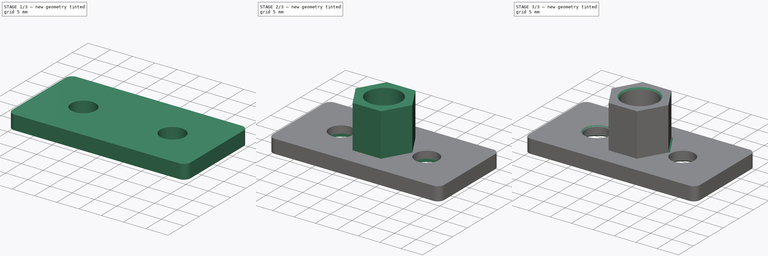
[diagram: build sequence overview — one tinted view per stage of 3, left to right]
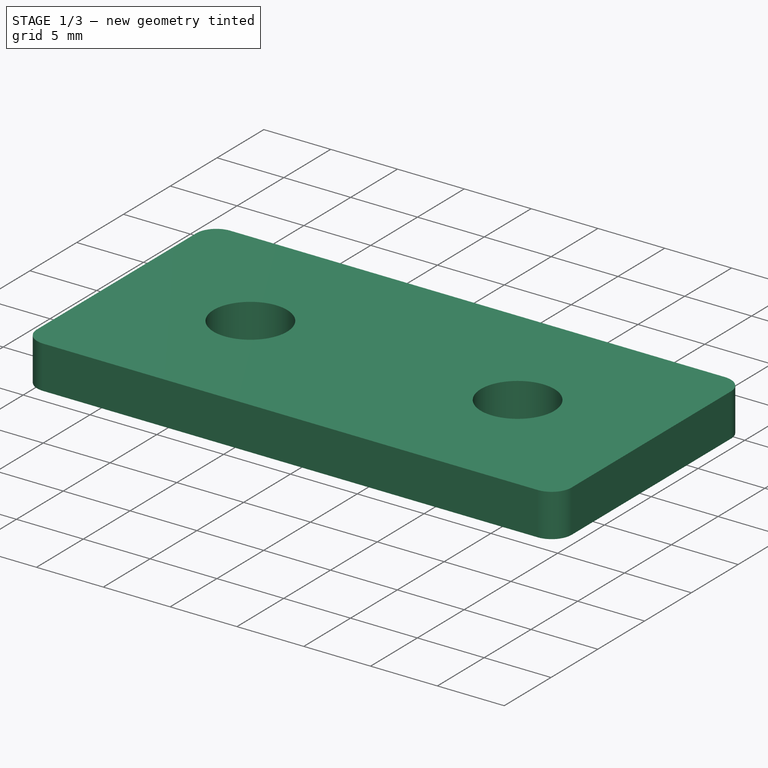
[diagram: stage 1 of 3 — iso view after this stage's code; geometry added in this stage tinted green]
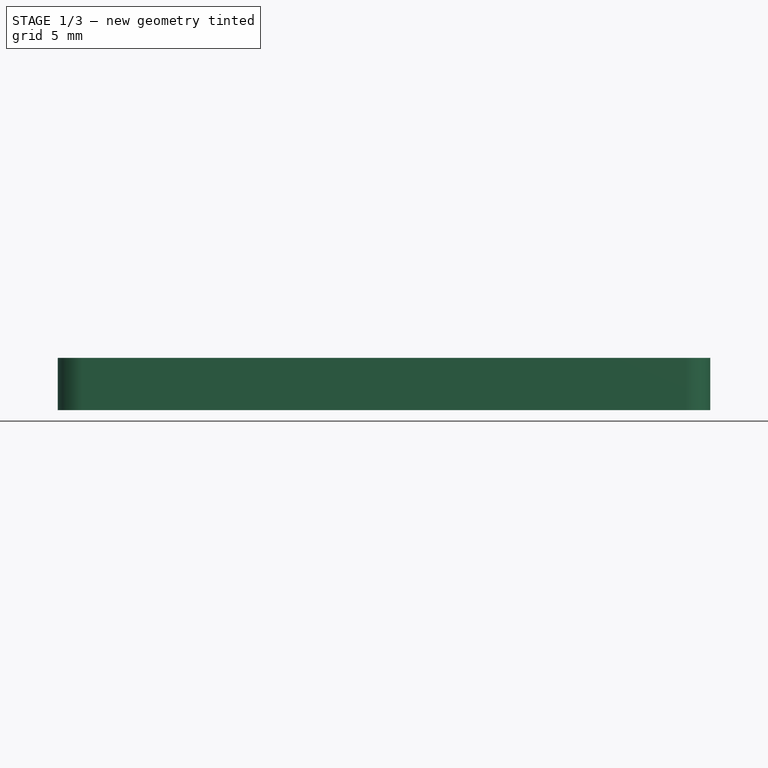
[diagram: stage 1 of 3 — front view after this stage's code; geometry added in this stage tinted green]
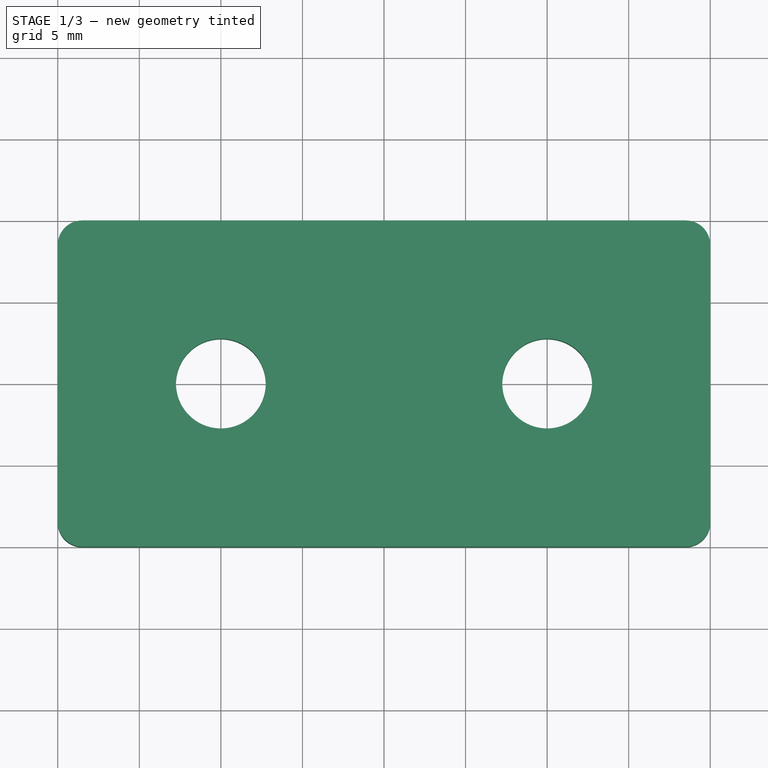
[diagram: stage 1 of 3 — top view after this stage's code; geometry added in this stage tinted green]
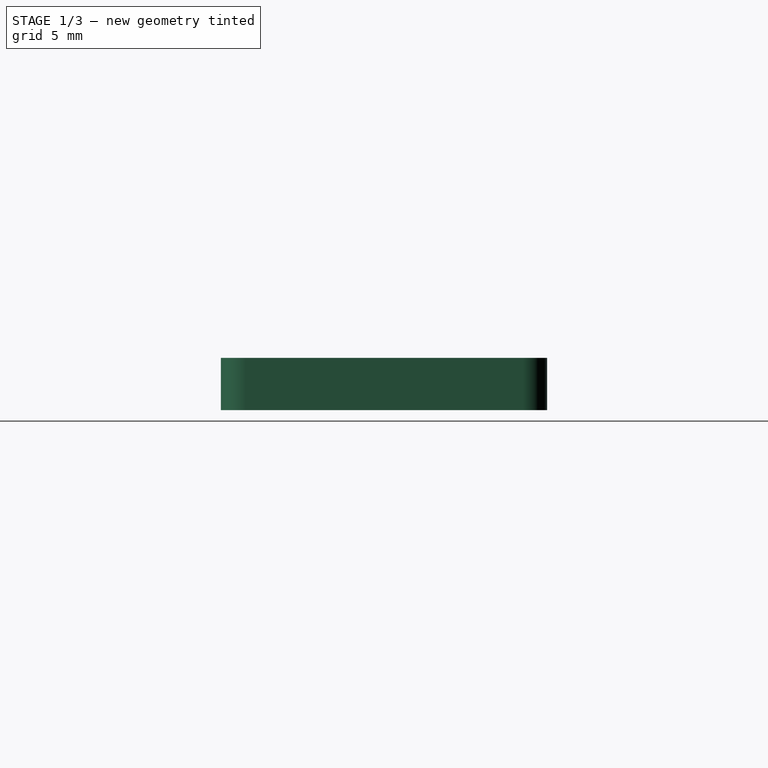
[diagram: stage 1 of 3 — right view after this stage's code; geometry added in this stage tinted green]
FCSTD DOCUMENT  (FreeCAD 1.0R39319 (Git))
Label: Nut-M8-Plate-BallScrew
License: All rights reserved
LicenseURL: http://en.wikipedia.org/wiki/All_rights_reserved
objects: Sketcher::SketchObject×4, PartDesign::Pad×2, PartDesign::Pocket×2, PartDesign::Chamfer×2, PartDesign::Fillet×1, PartDesign::Body×1
note: 30 computed .brp shape members not serialized (recipe doc carries the construction recipe); baked Part::Feature solids carry a one-line shape summary decoded from their .brp

FEATURE [Sketcher::SketchObject] Sketch
  ArcFitTolerance = 0
  AttachmentSupport = -> [XY_Plane]
  FullyConstrained = true
  MakeInternals = false
  MapMode = 5
  sketch-geometry (6):
    g0: LineSegment StartX=-20 StartY=10 StartZ=0 EndX=20 EndY=10 EndZ=0
    g1: LineSegment StartX=20 StartY=10 StartZ=0 EndX=20 EndY=-10 EndZ=0
    g2: LineSegment StartX=20 StartY=-10 StartZ=0 EndX=-20 EndY=-10 EndZ=0
    g3: LineSegment StartX=-20 StartY=-10 StartZ=0 EndX=-20 EndY=10 EndZ=0
    g4: Circle CenterX=10 CenterY=0 CenterZ=0 NormalX=0 NormalY=0 NormalZ=1 AngleXU=0 Radius=2.75
    g5: Circle CenterX=-10 CenterY=0 CenterZ=0 NormalX=0 NormalY=0 NormalZ=1 AngleXU=0 Radius=2.75
  constraints (16):
    c: Coincident(g0,g1)
    c: Coincident(g1,g2)
    c: Coincident(g2,g3)
    c: Coincident(g3,g0)
    c: Horizontal(g0)
    c: Horizontal(g2)
    c: Vertical(g1)
    c: Vertical(g3)
    c: Symmetric(g0,g1,g-1)
    c: DistanceX(g0,g0) = 40
    c: DistanceY(g3,g3) = 20
    c: PointOnObject(g4,g-1)
    c: Equal(g5,g4)
    c: Symmetric(g5,g4,g-2)
    c: Diameter(g4) = 5.5
    c: DistanceX(g5,g4) = 20
FEATURE [PartDesign::Pad] Pad
  AllowMultiFace = false
  Direction = (0,0,1)
  Length = 3.2
  Length2 = 100
  Profile = -> Sketch
  Suppressed = false
  Type = 0
FEATURE [PartDesign::Fillet] Fillet
  Base = -> Pad [Edge8,Edge1,Edge2,Edge5]
  BaseFeature = -> Pad
  Radius = 1.5
  Refine = true
  SupportTransform = false
  Suppressed = false
  UseAllEdges = false
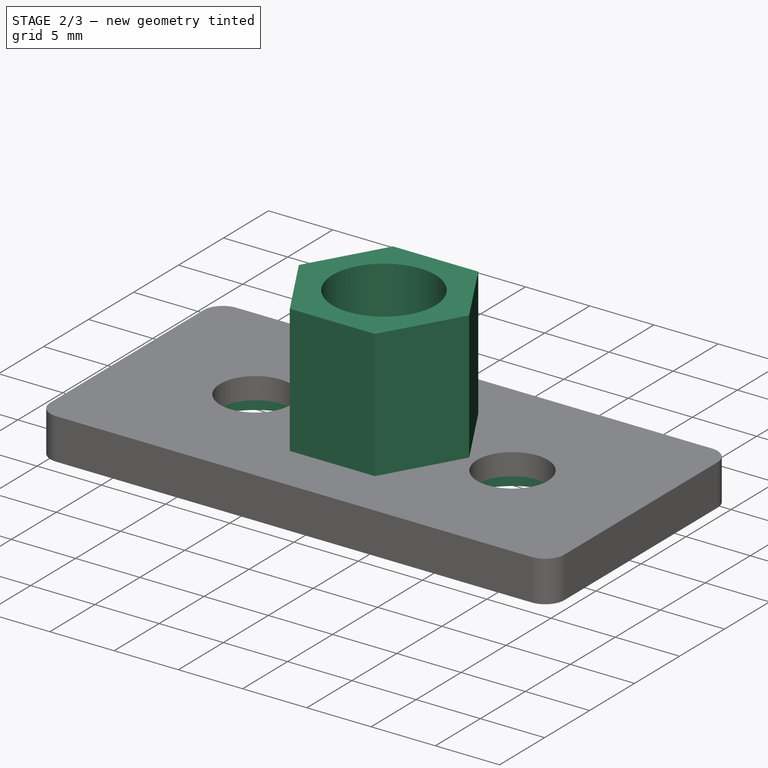
[diagram: stage 2 of 3 — iso view after this stage's code; geometry added in this stage tinted green]
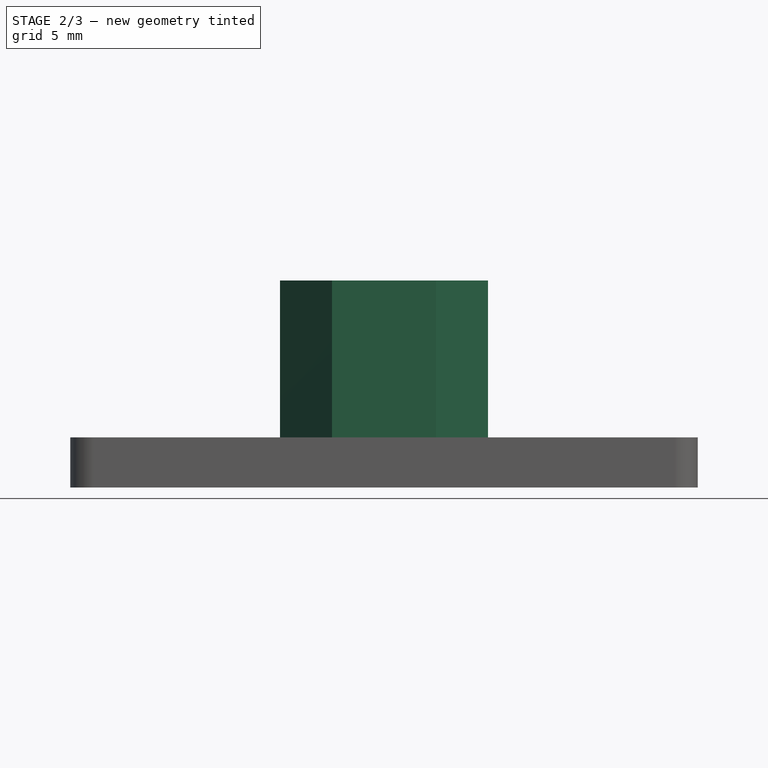
[diagram: stage 2 of 3 — front view after this stage's code; geometry added in this stage tinted green]
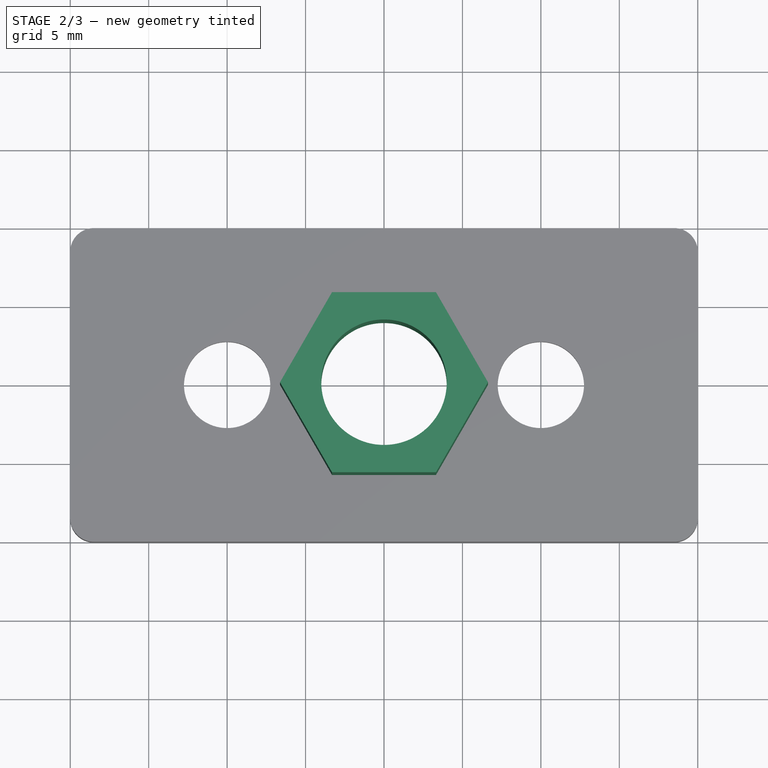
[diagram: stage 2 of 3 — top view after this stage's code; geometry added in this stage tinted green]
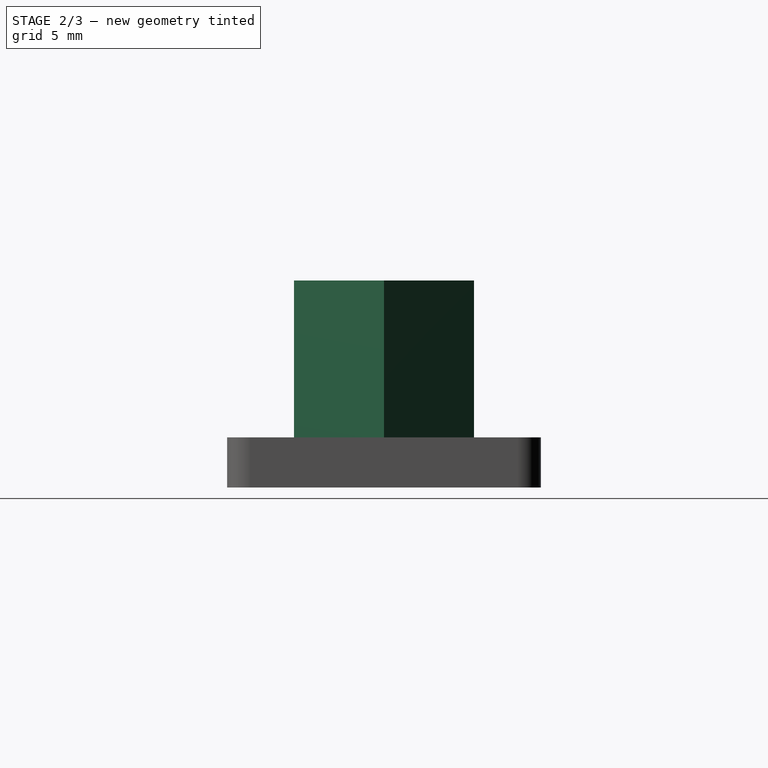
[diagram: stage 2 of 3 — right view after this stage's code; geometry added in this stage tinted green]
FEATURE [Sketcher::SketchObject] Sketch001
  ArcFitTolerance = 0
  AttachmentSupport = -> [Fillet]
  FullyConstrained = true
  MakeInternals = false
  MapMode = 5
  Placement = pos=(0,0,3.2) rot=(0,0,1;0rad)
  sketch-geometry (7):
    g0: LineSegment StartX=6.62798 StartY=0 StartZ=0 EndX=3.31399 EndY=5.74 EndZ=0
    g1: LineSegment StartX=3.31399 StartY=5.74 StartZ=0 EndX=-3.31399 EndY=5.74 EndZ=0
    g2: LineSegment StartX=-3.31399 StartY=5.74 StartZ=0 EndX=-6.62798 EndY=-9e-16 EndZ=0
    g3: LineSegment StartX=-6.62798 StartY=-9e-16 StartZ=0 EndX=-3.31399 EndY=-5.74 EndZ=0
    g4: LineSegment StartX=-3.31399 StartY=-5.74 StartZ=0 EndX=3.31399 EndY=-5.74 EndZ=0
    g5: LineSegment StartX=3.31399 StartY=-5.74 StartZ=0 EndX=6.62798 EndY=0 EndZ=0
    g6: Circle [constr] CenterX=0 CenterY=0 CenterZ=0 NormalX=0 NormalY=0 NormalZ=1 AngleXU=0 Radius=6.62798
  constraints (16):
    c: Coincident(g1,g2)
    c: Coincident(g2,g3)
    c: Coincident(g3,g4)
    c: Coincident(g4,g5)
    c: Coincident(g5,g0)
    c: Equal(g0, g1-g5) x5
    c: PointOnObject(g0,g6)
    c: PointOnObject(g1,g6)
    c: PointOnObject(g2,g6)
    c: PointOnObject(g3,g6)
    c: PointOnObject(g4,g6)
    c: PointOnObject(g5,g6)
    c: PointOnObject(g0,g-1)
    c: DistanceY(g4,g0) = 11.48
    c: Coincident(g1,g0)
    c: Coincident(g6,g-1)
FEATURE [PartDesign::Pad] Pad001
  AllowMultiFace = false
  BaseFeature = -> Fillet
  Direction = (0,0,1)
  Length = 10
  Length2 = 100
  Profile = -> Sketch001
  Suppressed = false
  Type = 0
FEATURE [Sketcher::SketchObject] Sketch002
  ArcFitTolerance = 0
  AttachmentSupport = -> [Pad001]
  FullyConstrained = true
  MakeInternals = false
  MapMode = 5
  Placement = pos=(0,0,13.2) rot=(0,0,1;0rad)
  sketch-geometry (1):
    g0: Circle CenterX=0 CenterY=0 CenterZ=0 NormalX=0 NormalY=0 NormalZ=1 AngleXU=0 Radius=4
  constraints (2):
    c: Coincident(g0,g-1)
    c: Diameter(g0) = 8
FEATURE [PartDesign::Pocket] Pocket
  AllowMultiFace = false
  BaseFeature = -> Pad001
  Direction = (0,0,-1)
  Length = 5
  Length2 = 100
  Profile = -> Sketch002
  Suppressed = false
  Type = 1
FEATURE [Sketcher::SketchObject] Sketch003
  ArcFitTolerance = 0
  AttachmentSupport = -> [Pocket]
  FullyConstrained = true
  MakeInternals = false
  MapMode = 5
  Placement = pos=(0,0,0) rot=(1,0,0;3.14159rad)
  sketch-geometry (2):
    g0: Circle CenterX=10 CenterY=0 CenterZ=0 NormalX=0 NormalY=0 NormalZ=1 AngleXU=0 Radius=4.5
    g1: Circle CenterX=-10 CenterY=0 CenterZ=0 NormalX=0 NormalY=0 NormalZ=1 AngleXU=0 Radius=4.5
  constraints (5):
    c: PointOnObject(g0,g-1)
    c: Symmetric(g1,g0,g-2)
    c: DistanceX(g1,g0) = 20
    c: Equal(g0,g1)
    c: Diameter(g0) = 9
FEATURE [PartDesign::Pocket] Pocket001
  AllowMultiFace = false
  BaseFeature = -> Pocket
  Direction = (0,0,1)
  Length = 1.5
  Length2 = 100
  Profile = -> Sketch003
  Suppressed = false
  Type = 0
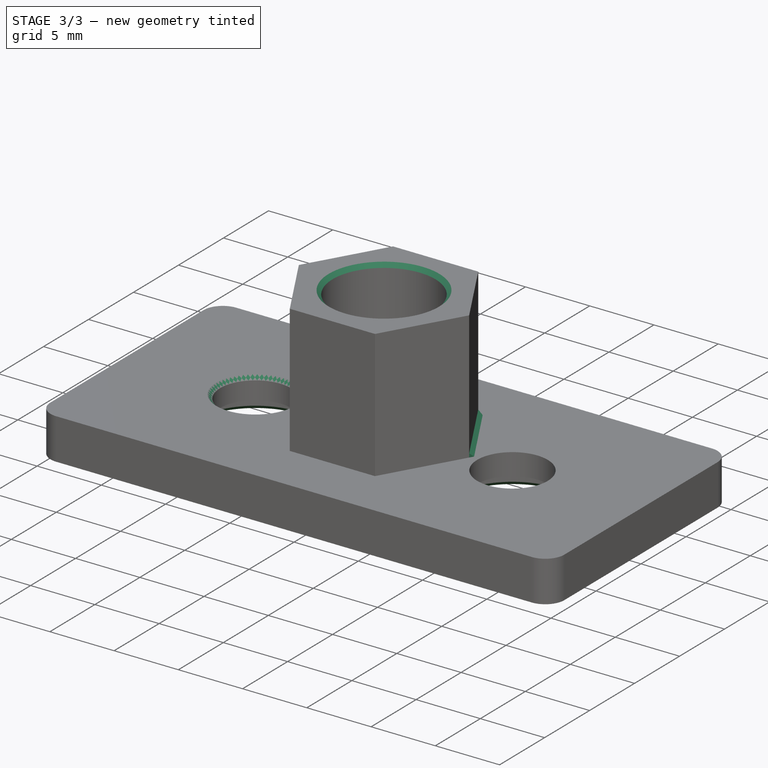
[diagram: stage 3 of 3 — iso view after this stage's code; geometry added in this stage tinted green]
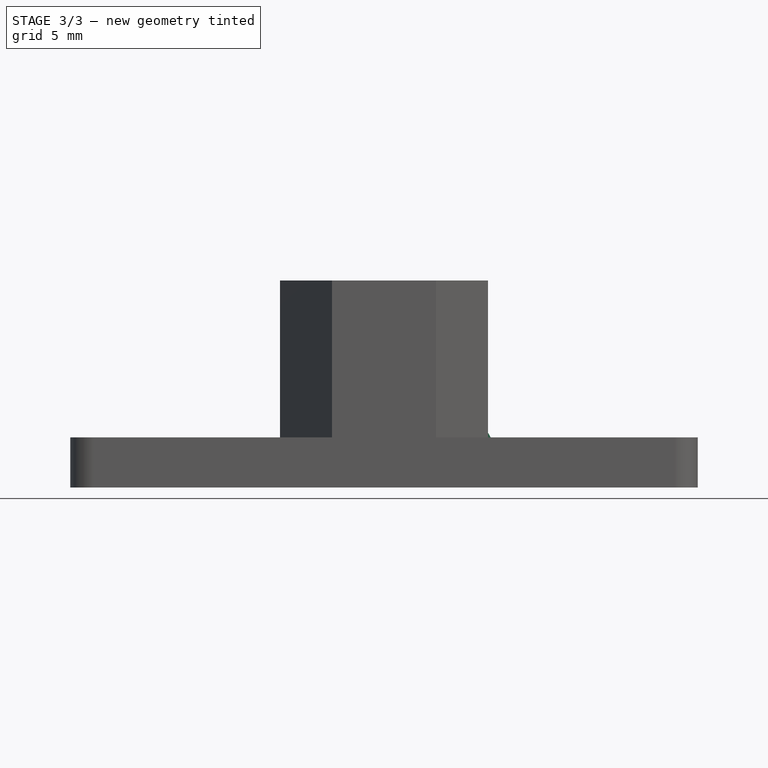
[diagram: stage 3 of 3 — front view after this stage's code; geometry added in this stage tinted green]
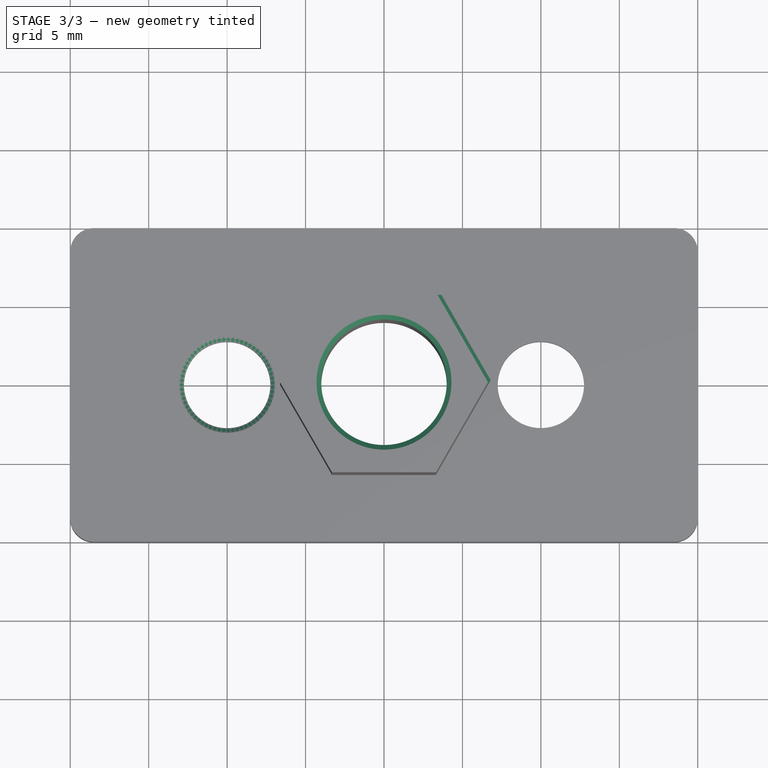
[diagram: stage 3 of 3 — top view after this stage's code; geometry added in this stage tinted green]
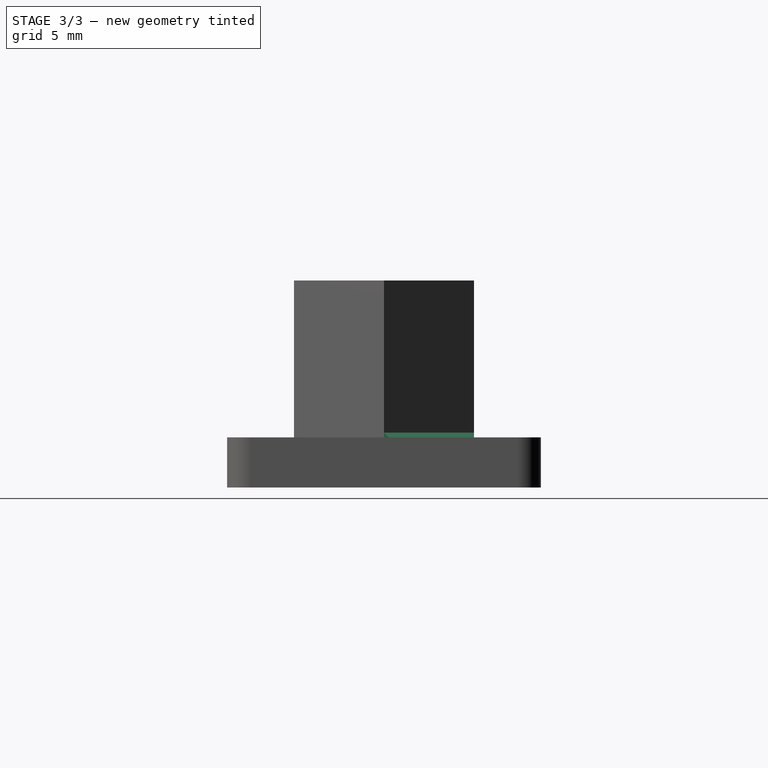
[diagram: stage 3 of 3 — right view after this stage's code; geometry added in this stage tinted green]
FEATURE [PartDesign::Chamfer] Chamfer
  Angle = 45
  Base = -> Pocket001 [Edge12,Edge13,Edge14]
  BaseFeature = -> Pocket001
  ChamferType = 0
  FlipDirection = false
  Refine = true
  Size = 0.3
  Size2 = 1
  SupportTransform = false
  Suppressed = false
  UseAllEdges = false
FEATURE [PartDesign::Chamfer] Chamfer001
  Angle = 45
  Base = -> Chamfer [Edge42,Edge45,Edge43]
  BaseFeature = -> Chamfer
  ChamferType = 0
  FlipDirection = false
  Refine = true
  Size = 0.3
  Size2 = 1
  SupportTransform = false
  Suppressed = false
  UseAllEdges = false
FEATURE [PartDesign::Body] Body
  AllowCompound = false
  Group = -> [Sketch,Pad,Fillet,Sketch001,Pad001,Sketch002,Pocket,Sketch003,Pocket001,Chamfer,Chamfer001]
  Origin = -> Origin
  Tip = -> Chamfer001
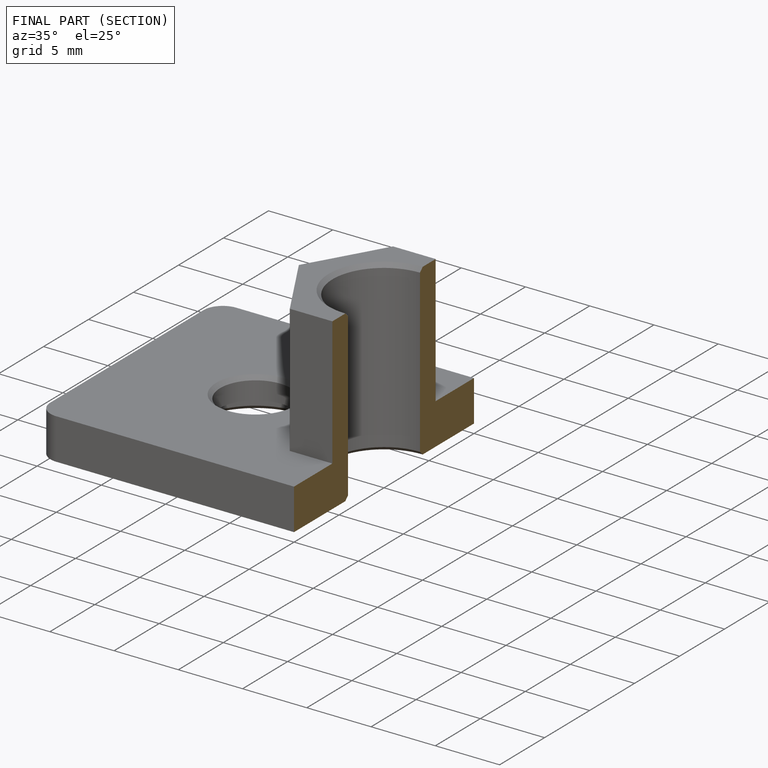
[diagram: finished part — half-section view (interior)]
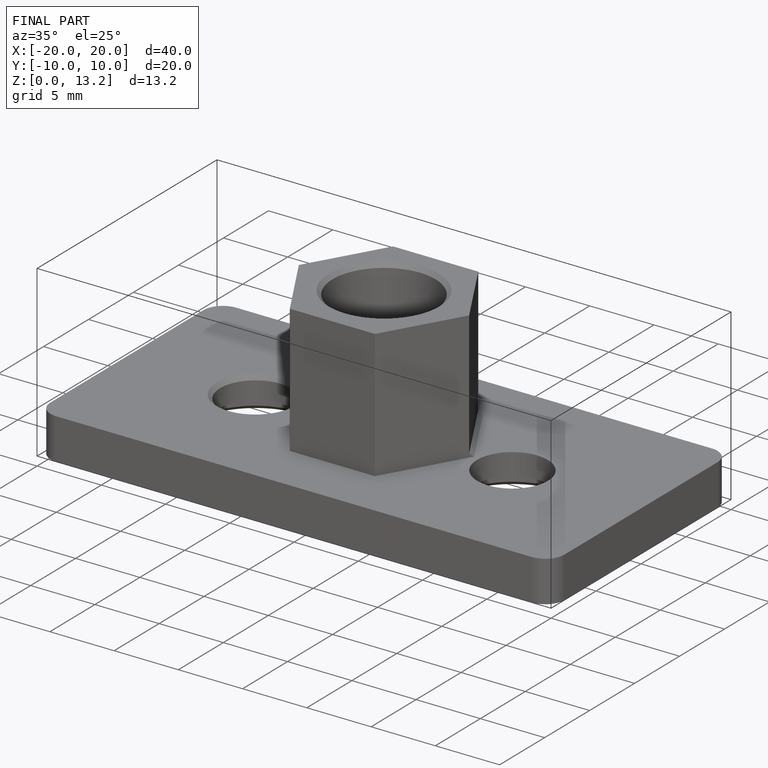
[diagram: finished part — iso view with bounding-box wireframe]
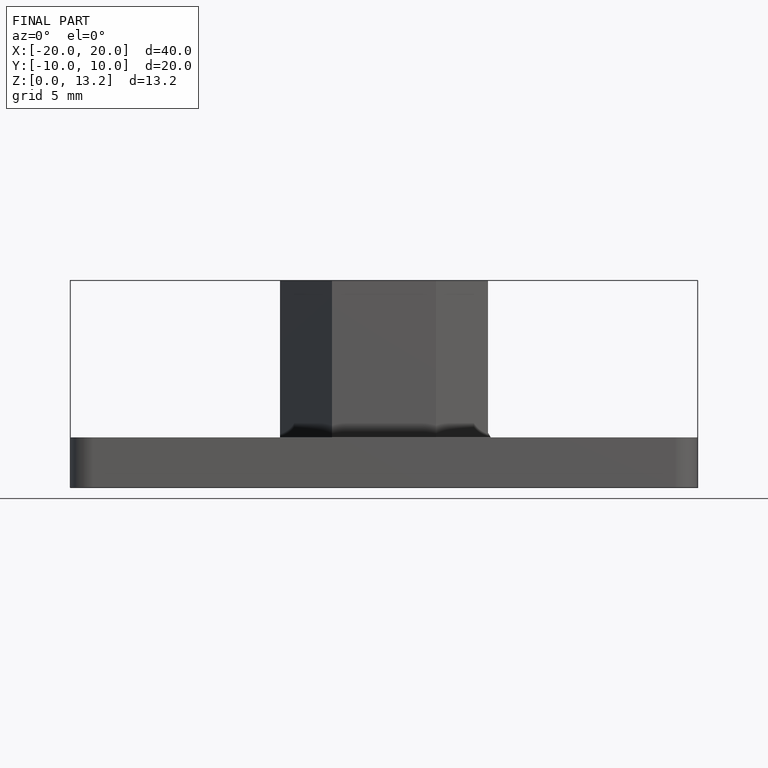
[diagram: finished part — front view with bounding-box wireframe]
